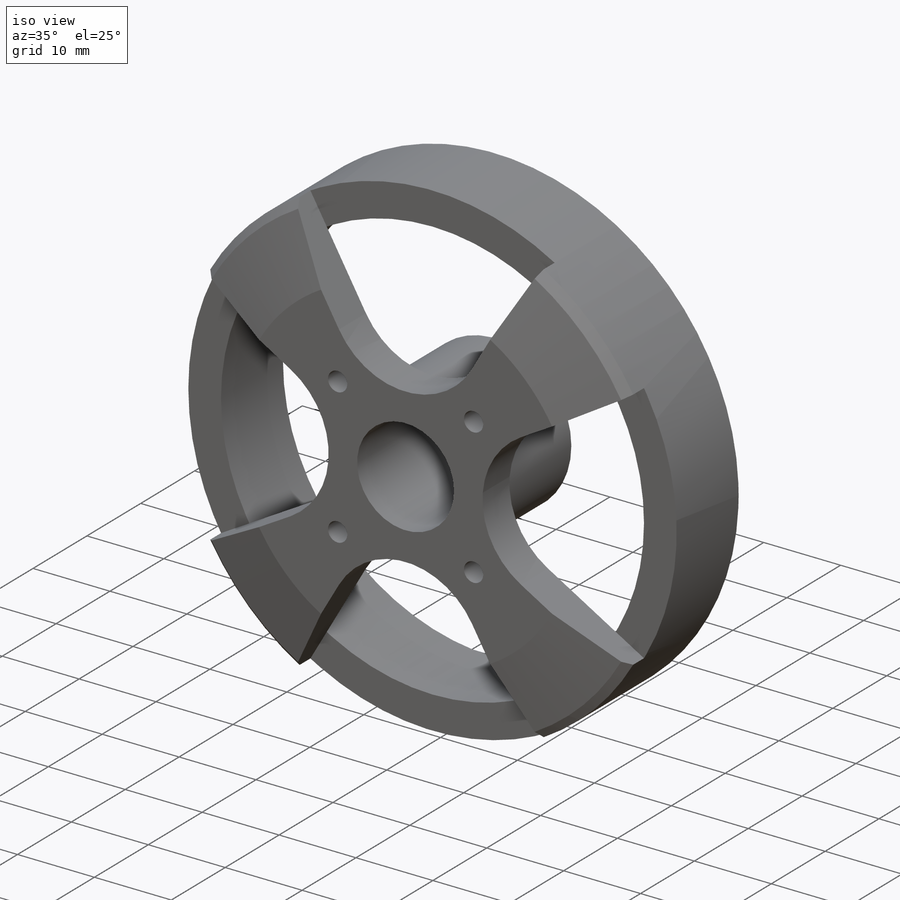
[diagram: iso view]
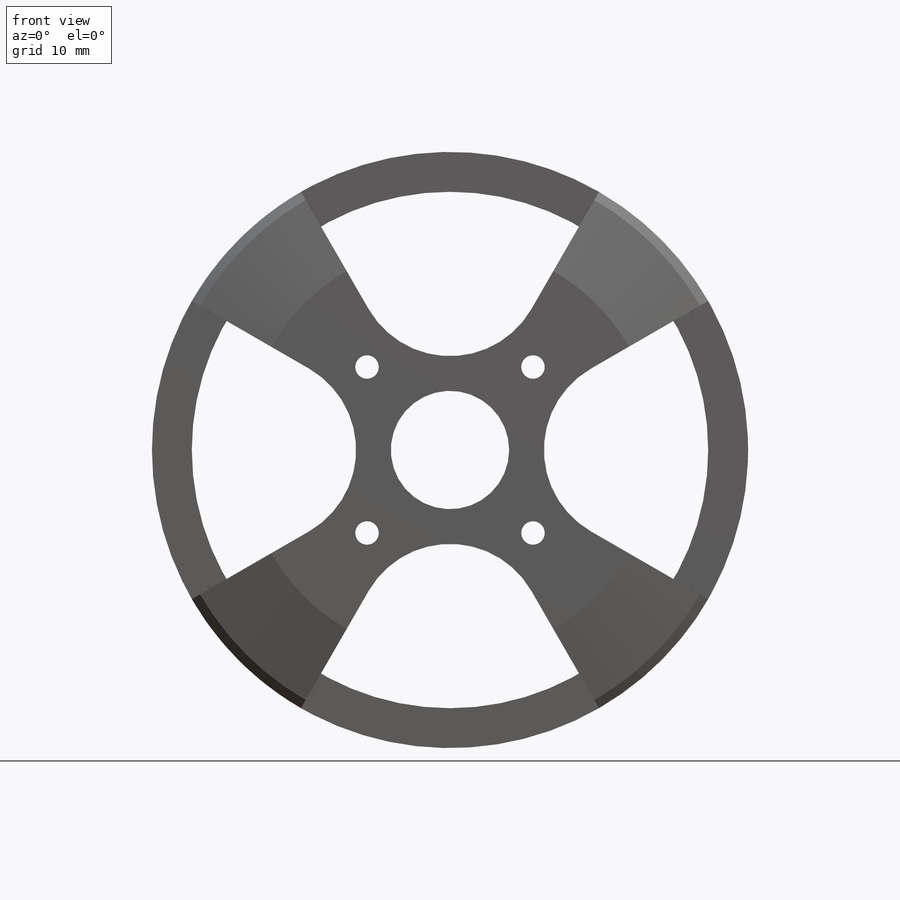
[diagram: front view]
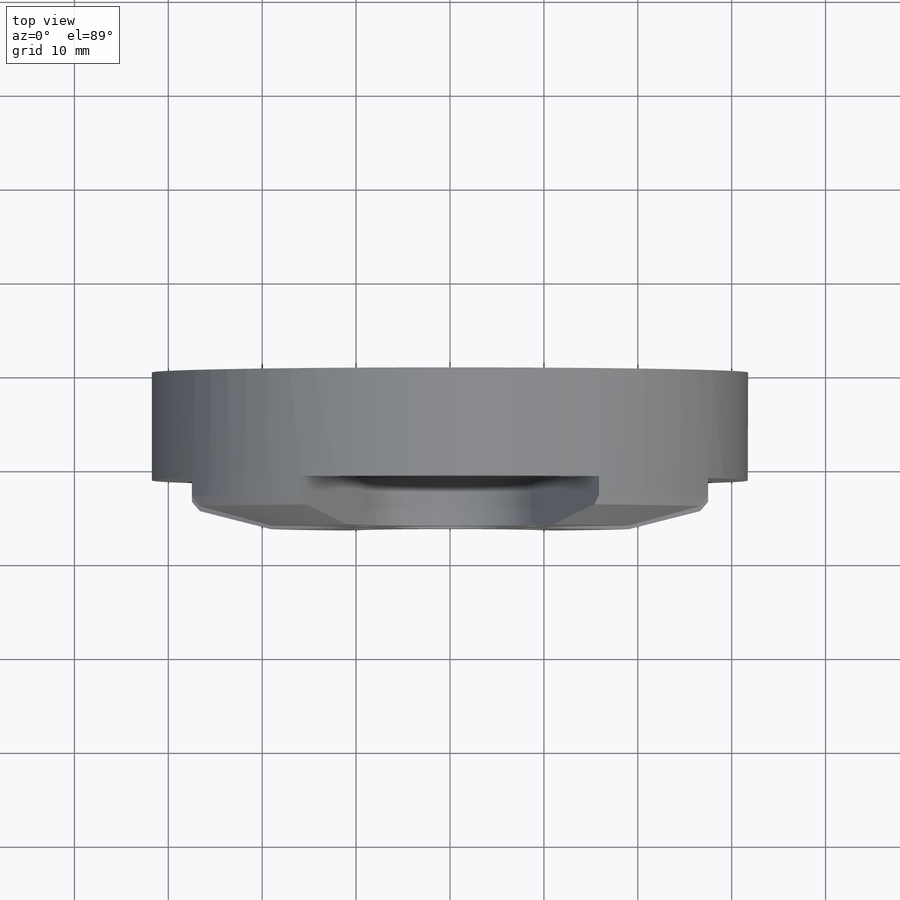
[diagram: top view]
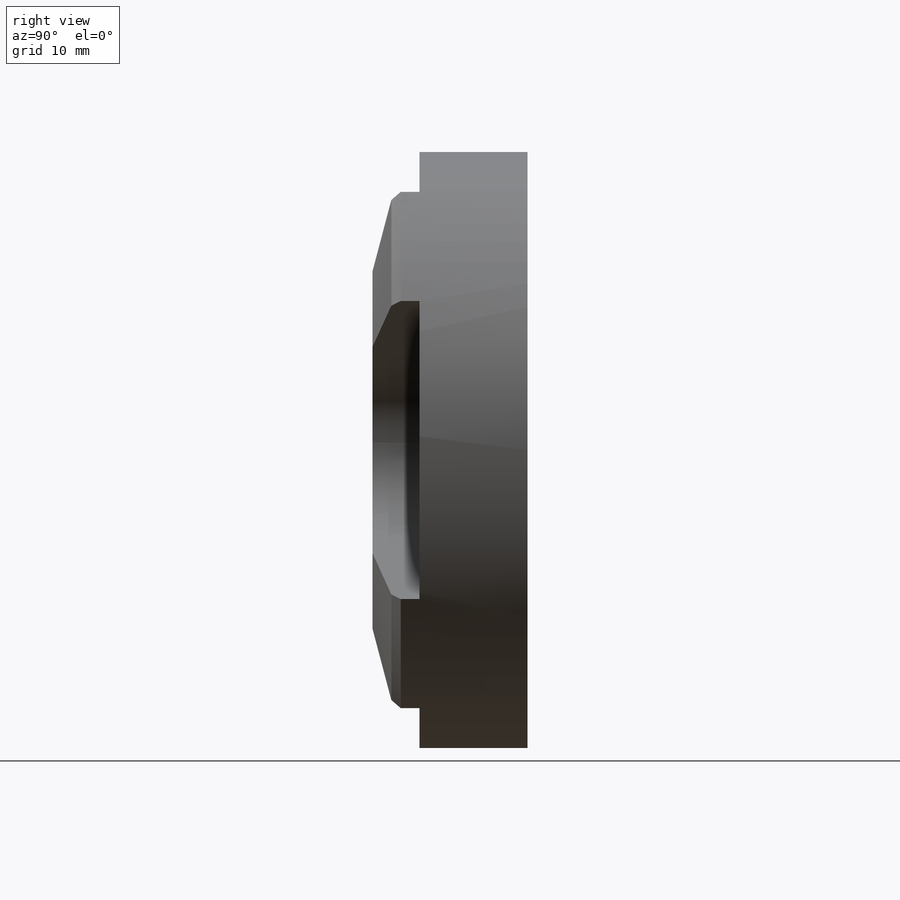
[diagram: right view]
SOLIDWORKS PART (.sldprt)
format: sldprt  version: not decoded by parser v0  size: 361,984 bytes
history: native  units: mm
features: sketch x10, plane x4, thread x4, cut_extrude x3, extrude x2, material x1, chamfer x1, hole x1 (+8 scaffold rows collapsed)
feature tree (34):
  scaffold x8  (default folders/planes/origin — collapsed)
  material  "Сплав 2024"
  plane  "Спереди"
  plane  "Сверху"
  plane  "Справа"
  sketch  "Эскиз1"  dims[D1=63.5mm]
  extrude  "Бобышка-Вытянуть1"  Depth=14.5mm
  chamfer  "Фаска1"  Distance=1mm Angle=45deg
  plane  "Плоскость1"  Offset=2mm
  sketch  "Эскиз2"  dims[D1=44.0mm]
  sketch  "Эскиз3"  dims[D1=61.5mm]
  sketch  "Эскиз4"  dims[D1=12.6mm]
  cut_extrude  "Вырез-Вытянуть1"  [1 undecoded]
  sketch  "Эскиз5"  dims[c1.D1=20.0mm c1.D2=20.0mm c1.D3=20.0mm c1.D4=20.0mm c1.D5=40.0mm c1.D6=~17.171699mm c2.D6=60.0deg c2.D7=63.5mm c3.D7=30.0deg c3.D2=4.0]
  cut_extrude  "Вырез-Вытянуть2"  Depth=5mm
  sketch  "Эскиз6"  dims[D1=55.0mm]
  cut_extrude  "Вырез-Вытянуть3"  [1 undecoded]
  sketch  "Эскиз7"  dims[D1=25.0mm]
  hole  "Отверстие обработанное метчиком M3x0.51"  [1 undecoded]
  sketch  "Эскиз9"
  sketch  "Эскиз10"  dims[hole-wizard template sketch: 60 standard entries collapsed; hole parameters kept: c18.Глубина проходного сверла=16.5mm]
  thread  "Отверстие резьбы1"  Diameter=3mm  [1 undecoded]
  thread  "Отверстие резьбы2"  Diameter=3mm  [1 undecoded]
  thread  "Отверстие резьбы3"  Diameter=3mm  [1 undecoded]
  thread  "Отверстие резьбы4"  Diameter=3mm  [1 undecoded]
  sketch  "Эскиз11"  dims[D1=12.6mm D2=20.0mm]
  extrude  "Бобышка-Вытянуть2"  [1 undecoded]
decode coverage: 16 of 21 modeling features carry decoded parameters
note: ~ marks probable driven/reference dimensions
note: 8 parameter values undecoded
summary: no parameter record found for 4 features
note: suppression state not decoded; provenance and decode notes live in map.json
